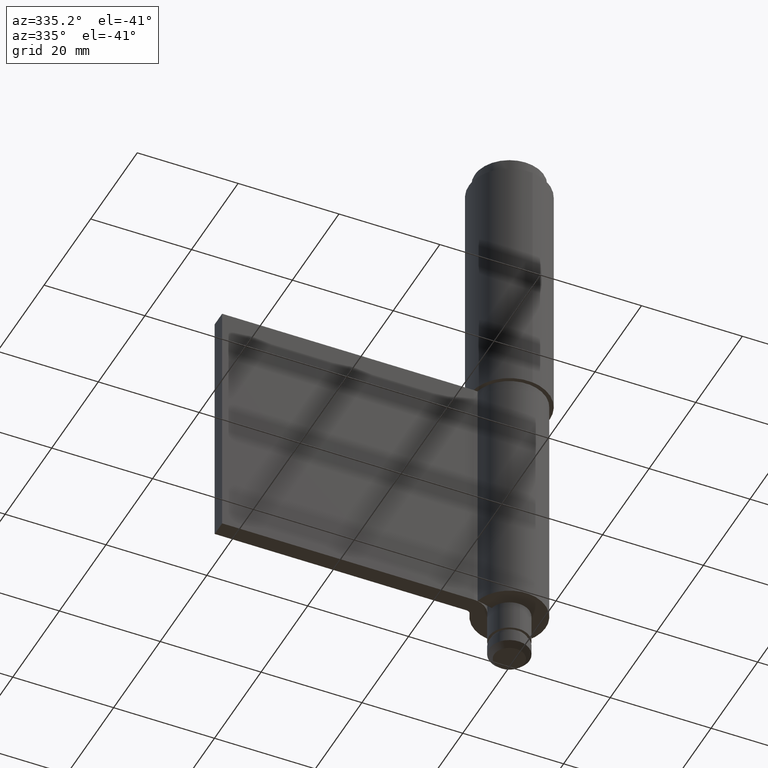
[diagram: clean part render]
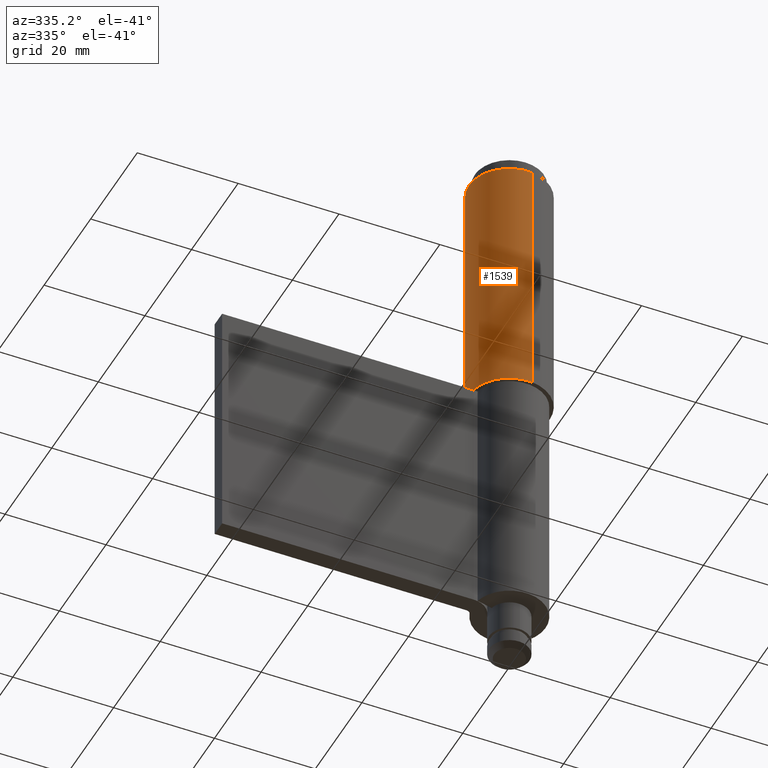
[diagram: same view with one face highlighted and labeled with its STEP entity id]
A machine part, auxiliary view. The second image highlights one B-rep face of the part: STEP entity #1539.
In plain terms, the highlighted face is a freeform B-spline surface patch.
Its self-contained STEP definition (entity closure, byte-faithful):
#1437=CARTESIAN_POINT('',(0.944273877254125,-7.944076210909330,111.250000000000060));
#1438=CARTESIAN_POINT('',(0.716917829103878,-7.971100923588844,111.250000000000060));
#1439=CARTESIAN_POINT('',(0.488388316278913,-7.985078387374934,111.250000000000000));
#1440=CARTESIAN_POINT('',(-7.496690071096021,-8.473466703653790,111.250000000000000));
#1441=CARTESIAN_POINT('',(-7.985078387374877,-0.488388316278856,111.250000000000000));
#1442=CARTESIAN_POINT('',(-8.473466703653733,7.496690071096078,111.250000000000000));
#1443=CARTESIAN_POINT('',(-0.488388316278799,7.985078387374934,111.250000000000000));
#1444=CARTESIAN_POINT('',(0.944273877254125,-7.944076210909330,58.718750000000000));
#1445=CARTESIAN_POINT('',(0.716917829103878,-7.971100923588844,58.718750000000000));
#1446=CARTESIAN_POINT('',(0.488388316278913,-7.985078387374934,58.718749999999993));
#1447=CARTESIAN_POINT('',(-7.496690071096021,-8.473466703653790,58.718750000000000));
#1448=CARTESIAN_POINT('',(-7.985078387374877,-0.488388316278856,58.718749999999993));
#1449=CARTESIAN_POINT('',(-8.473466703653733,7.496690071096078,58.718750000000000));
#1450=CARTESIAN_POINT('',(-0.488388316278799,7.985078387374934,58.718749999999993));
#1458=(BOUNDED_SURFACE()B_SPLINE_SURFACE(2,1,((#1437,#1444),(#1438,#1445),(#1439,#1446),(#1440,#1447),(#1441,#1448),(#1442,#1449),(#1443,#1450)),.UNSPECIFIED.,.F.,.F.,.U.)B_SPLINE_SURFACE_WITH_KNOTS((3,2,2,3),(2,2),(0.0,0.530193359837562,13.785027355776601,27.039861351715640),(0.0,52.531250000000028),.UNSPECIFIED.)GEOMETRIC_REPRESENTATION_ITEM()RATIONAL_B_SPLINE_SURFACE(((0.977505800795127,0.977505800795127),(0.988284271247462,0.988284271247462),(1.0,1.0),(0.707106781186548,0.707106781186548),(1.0,1.0),(0.707106781186548,0.707106781186548),(1.0,1.0)))REPRESENTATION_ITEM('')SURFACE());
#1459=CARTESIAN_POINT('',(0.944273877348134,-7.944076210898157,60.0));
#1460=VERTEX_POINT('',#1459);
#1461=CARTESIAN_POINT('',(-7.999999999999943,0.0,60.0));
#1462=VERTEX_POINT('',#1461);
#1463=CARTESIAN_POINT('',(0.944273877348134,-7.944076210898157,60.0));
#1464=CARTESIAN_POINT('',(0.473792957310341,-8.0,60.0));
#1465=CARTESIAN_POINT('',(5.684342E-014,-8.0,60.0));
#1466=CARTESIAN_POINT('',(-7.999999999999943,-8.0,60.0));
#1467=CARTESIAN_POINT('',(-7.999999999999943,0.0,60.0));
#1475=(BOUNDED_CURVE()B_SPLINE_CURVE(2,(#1463,#1464,#1465,#1466,#1467),.UNSPECIFIED.,.F.,.U.)B_SPLINE_CURVE_WITH_KNOTS((3,2,3),(0.229562473511644,0.250000000000000,0.500000000000000),.UNSPECIFIED.)CURVE()GEOMETRIC_REPRESENTATION_ITEM()RATIONAL_B_SPLINE_CURVE((0.956026754180046,0.976055948328961,1.0,0.707106781186548,1.0))REPRESENTATION_ITEM(''));
#1476=EDGE_CURVE('',#1460,#1462,#1475,.T.);
#1477=ORIENTED_EDGE('',*,*,#1476,.F.);
#1478=CARTESIAN_POINT('',(0.944273877348135,-7.944076210898157,110.0));
#1479=VERTEX_POINT('',#1478);
#1480=CARTESIAN_POINT('',(0.944273877348135,-7.944076210898157,110.0));
#1481=CARTESIAN_POINT('',(0.944273877348134,-7.944076210898157,60.0));
#1482=QUASI_UNIFORM_CURVE('',1,(#1480,#1481),.UNSPECIFIED.,.F.,.U.);
#1483=EDGE_CURVE('',#1479,#1460,#1482,.T.);
#1484=ORIENTED_EDGE('',*,*,#1483,.F.);
#1485=CARTESIAN_POINT('',(-7.999999999999943,0.0,110.0));
#1486=VERTEX_POINT('',#1485);
#1487=CARTESIAN_POINT('',(0.944273877348135,-7.944076210898157,109.999999999999990));
#1488=CARTESIAN_POINT('',(0.473792957310341,-8.0,109.999999999999970));
#1489=CARTESIAN_POINT('',(5.684342E-014,-8.0,110.0));
#1490=CARTESIAN_POINT('',(-7.999999999999943,-8.0,110.0));
#1491=CARTESIAN_POINT('',(-7.999999999999943,0.0,110.0));
#1499=(BOUNDED_CURVE()B_SPLINE_CURVE(2,(#1487,#1488,#1489,#1490,#1491),.UNSPECIFIED.,.F.,.U.)B_SPLINE_CURVE_WITH_KNOTS((3,2,3),(0.229562473511644,0.250000000000000,0.500000000000000),.UNSPECIFIED.)CURVE()GEOMETRIC_REPRESENTATION_ITEM()RATIONAL_B_SPLINE_CURVE((0.956026754180046,0.976055948328961,1.0,0.707106781186548,1.0))REPRESENTATION_ITEM(''));
#1500=EDGE_CURVE('',#1479,#1486,#1499,.T.);
#1501=ORIENTED_EDGE('',*,*,#1500,.T.);
#1502=CARTESIAN_POINT('',(-0.488388316448705,7.985078387364543,110.0));
#1503=VERTEX_POINT('',#1502);
#1504=CARTESIAN_POINT('',(-7.999999999999943,0.0,110.0));
#1505=CARTESIAN_POINT('',(-7.999999999999943,7.525648534924739,110.0));
#1506=CARTESIAN_POINT('',(-0.488388316448705,7.985078387364543,109.999999999999990));
#1514=(BOUNDED_CURVE()B_SPLINE_CURVE(2,(#1504,#1505,#1506),.UNSPECIFIED.,.F.,.U.)B_SPLINE_CURVE_WITH_KNOTS((3,3),(0.500000000000000,0.739332962234626),.UNSPECIFIED.)CURVE()GEOMETRIC_REPRESENTATION_ITEM()RATIONAL_B_SPLINE_CURVE((1.0,0.719603993291767,0.976072041657466))REPRESENTATION_ITEM(''));
#1515=EDGE_CURVE('',#1486,#1503,#1514,.T.);
#1516=ORIENTED_EDGE('',*,*,#1515,.T.);
#1517=CARTESIAN_POINT('',(-0.488388316448705,7.985078387364543,60.0));
#1518=VERTEX_POINT('',#1517);
#1519=CARTESIAN_POINT('',(-0.488388316448705,7.985078387364543,110.0));
#1520=CARTESIAN_POINT('',(-0.488388316448705,7.985078387364543,60.0));
#1521=QUASI_UNIFORM_CURVE('',1,(#1519,#1520),.UNSPECIFIED.,.F.,.U.);
#1522=EDGE_CURVE('',#1503,#1518,#1521,.T.);
#1523=ORIENTED_EDGE('',*,*,#1522,.T.);
#1524=CARTESIAN_POINT('',(-7.999999999999943,0.0,60.0));
#1525=CARTESIAN_POINT('',(-7.999999999999943,7.525648534924739,59.999999999999993));
#1526=CARTESIAN_POINT('',(-0.488388316448705,7.985078387364543,60.0));
#1534=(BOUNDED_CURVE()B_SPLINE_CURVE(2,(#1524,#1525,#1526),.UNSPECIFIED.,.F.,.U.)B_SPLINE_CURVE_WITH_KNOTS((3,3),(0.500000000000000,0.739332962234626),.UNSPECIFIED.)CURVE()GEOMETRIC_REPRESENTATION_ITEM()RATIONAL_B_SPLINE_CURVE((1.0,0.719603993291767,0.976072041657466))REPRESENTATION_ITEM(''));
#1535=EDGE_CURVE('',#1462,#1518,#1534,.T.);
#1536=ORIENTED_EDGE('',*,*,#1535,.F.);
#1537=EDGE_LOOP('',(#1477,#1484,#1501,#1516,#1523,#1536));
#1538=FACE_OUTER_BOUND('',#1537,.T.);
#1539=ADVANCED_FACE('',(#1538),#1458,.T.);